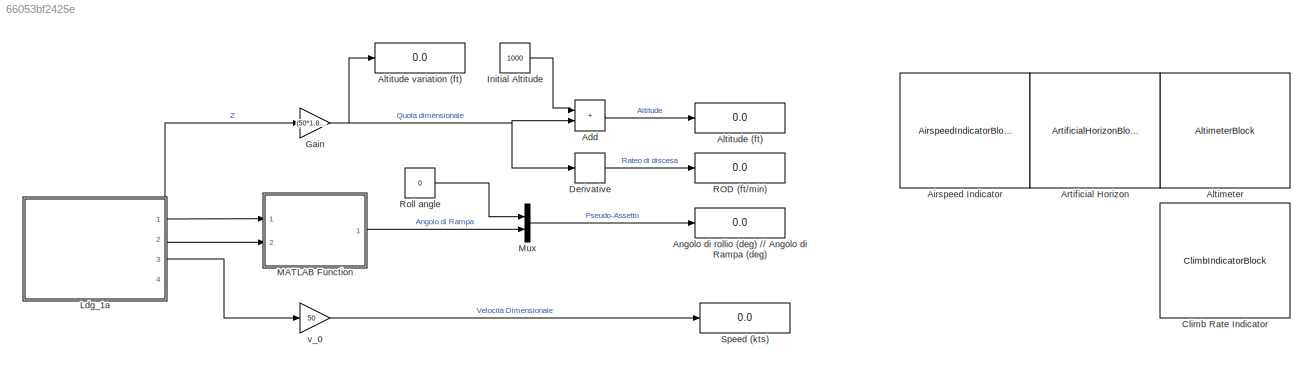
MODEL slx_66053bf2425e
KIND model
CONFIG AbsTol = auto
CONFIG EnableMultiTasking = off
CONFIG FixedStep = 0.05
CONFIG MaxStep = auto
CONFIG MinStep = auto
CONFIG RelTol = 1e-3
CONFIG SampleTimeConstraint = Unconstrained
CONFIG SolverName = ode4
CONFIG StartTime = 0.0
CONFIG StopTime = 60.0
BLOCK [Sum] Add
  IconShape = rectangular
  Ports = [2, 1]
BLOCK [AirspeedIndicatorBlock] Airspeed Indicator
  LabelPosition = Hide
  ScaleMax = 200
  ScaleMin = 0
BLOCK [AltimeterBlock] Altimeter
  LabelPosition = Hide
BLOCK [Display] Altitude (ft)
  Decimation = 1
  Ports = [1]
BLOCK [Display] Altitude variation (ft)
  Decimation = 1
  Ports = [1]
BLOCK [Display] Angolo di rollio (deg) //// Angolo di Rampa (deg)
  Decimation = 1
  Ports = [1]
BLOCK [ArtificialHorizonBlock] Artificial Horizon
  LabelPosition = Hide
BLOCK [ClimbIndicatorBlock] Climb Rate Indicator
  LabelPosition = Hide
  ScaleMax = 1000
BLOCK [Derivative] Derivative
BLOCK [Gain] Gain
  Gain = (50*1.852/3.6)^2/(9.81*0.3048)
BLOCK [Constant] Initial Altitude
  Value = 1000
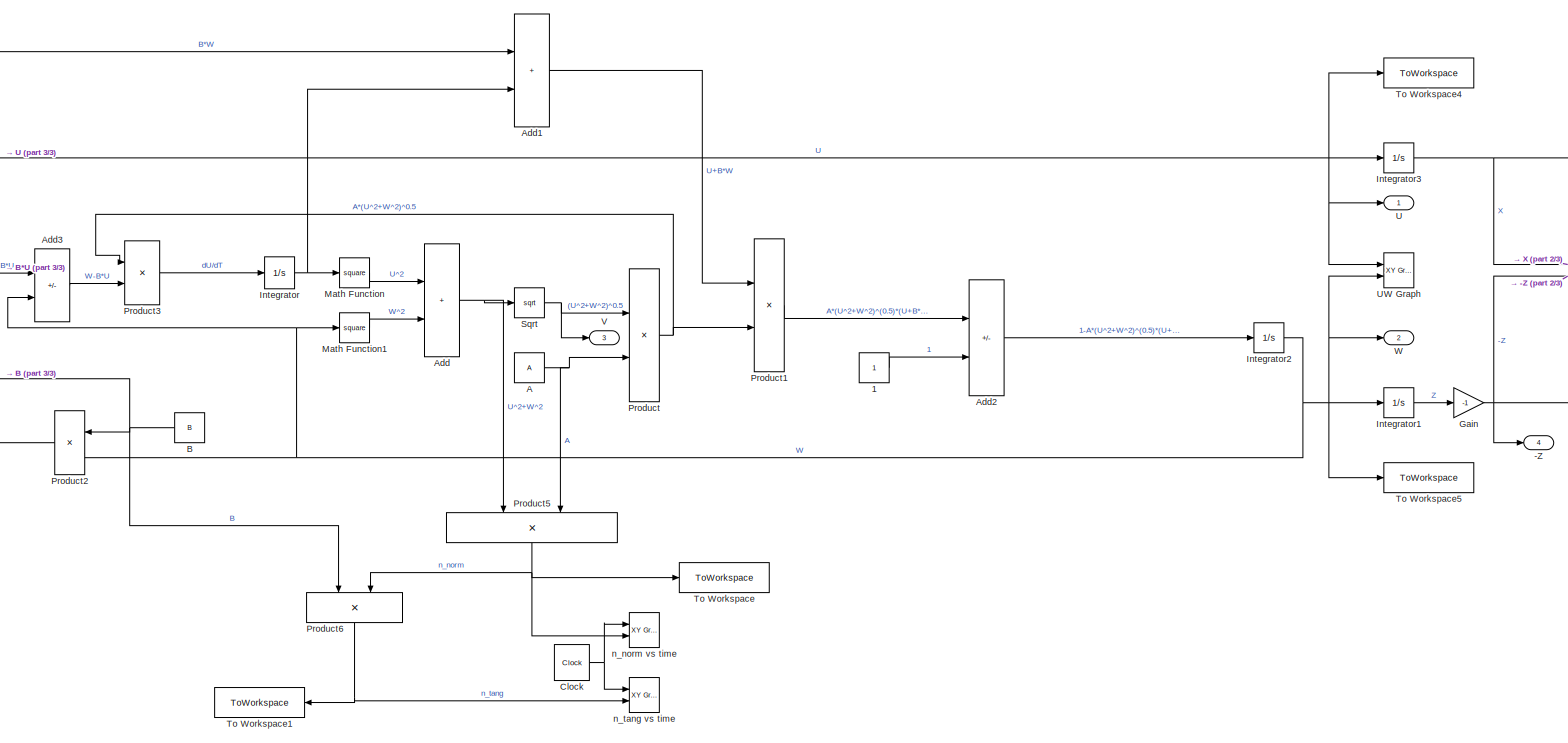
[diagram: Ldg_1a - part 1/3, most of the canvas]
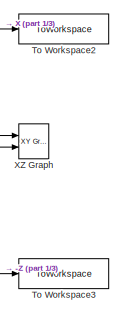
[diagram: Ldg_1a - part 2/3, middle right region]
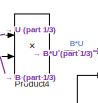
[diagram: Ldg_1a - part 3/3, middle left region]
BLOCK [SubSystem] Ldg_1a
  PortSchema = {"entries":[{"content":{"sides":[{"content":{"connectorIds":[]},"type":"ConnectorPlacement.EquallySpacedRectSide","uuid":"4eeddddf-5648-4c88-8f7b-ba758a5b9acf"},{"content":{"connectorIds":["Out1","Out2","Out3"],"side":"RIGHT"},"type":"ConnectorPlacement.EquallySpacedRectSide","uuid":"a418b520-34c7-4937-9a68-89fd52b02874"},{"content":{"connectorIds":["Out4"],"side":"TOP"},"type":"ConnectorPlacement...<+255ch>
  Ports = [0, 4]
  RequestExecContextInheritance = off
BLOCK [Outport] Ldg_1a/-Z
  Port = 4
BLOCK [Constant] Ldg_1a/1
BLOCK [Constant] Ldg_1a/A
  Value = A
BLOCK [Sum] Ldg_1a/Add
  IconShape = rectangular
  Ports = [2, 1]
BLOCK [Sum] Ldg_1a/Add1
  IconShape = rectangular
  Ports = [2, 1]
BLOCK [Sum] Ldg_1a/Add2
  IconShape = rectangular
  Inputs = -+
  Ports = [2, 1]
BLOCK [Sum] Ldg_1a/Add3
  IconShape = rectangular
  Inputs = -+
  Ports = [2, 1]
BLOCK [Constant] Ldg_1a/B
  Value = B
BLOCK [Clock] Ldg_1a/Clock
BLOCK [Gain] Ldg_1a/Gain
  Gain = -1
BLOCK [Integrator] Ldg_1a/Integrator
  InitialCondition = cos(gamma_0*pi/180)
  Ports = [1, 1]
BLOCK [Integrator] Ldg_1a/Integrator1
  Ports = [1, 1]
BLOCK [Integrator] Ldg_1a/Integrator2
  InitialCondition = -sin(gamma_0*pi/180)
  Ports = [1, 1]
BLOCK [Integrator] Ldg_1a/Integrator3
  Ports = [1, 1]
BLOCK [Math] Ldg_1a/Math Function
  Operator = square
  Ports = [1, 1]
BLOCK [Math] Ldg_1a/Math Function1
  Operator = square
  Ports = [1, 1]
BLOCK [Product] Ldg_1a/Product
  Ports = [2, 1]
BLOCK [Product] Ldg_1a/Product1
  Ports = [2, 1]
BLOCK [Product] Ldg_1a/Product2
  Ports = [2, 1]
BLOCK [Product] Ldg_1a/Product3
  Ports = [2, 1]
BLOCK [Product] Ldg_1a/Product4
  Ports = [2, 1]
BLOCK [Product] Ldg_1a/Product5
  NameLocation = left
  Ports = [2, 1]
BLOCK [Product] Ldg_1a/Product6
  NameLocation = left
  Ports = [2, 1]
BLOCK [Sqrt] Ldg_1a/Sqrt
BLOCK [ToWorkspace] Ldg_1a/To Workspace
  FixptAsFi = on
  MaxDataPoints = inf
  Ports = [1]
  SampleTime = -1
  SaveFormat = Timeseries
  VariableName = n_norm
BLOCK [ToWorkspace] Ldg_1a/To Workspace1
  FixptAsFi = on
  MaxDataPoints = inf
  Ports = [1]
  SampleTime = -1
  SaveFormat = Timeseries
  VariableName = n_tang
BLOCK [ToWorkspace] Ldg_1a/To Workspace2
  FixptAsFi = on
  MaxDataPoints = inf
  Ports = [1]
  SampleTime = -1
  SaveFormat = Timeseries
  VariableName = X
BLOCK [ToWorkspace] Ldg_1a/To Workspace3
  FixptAsFi = on
  MaxDataPoints = inf
  Ports = [1]
  SampleTime = -1
  SaveFormat = Timeseries
  VariableName = Z
BLOCK [ToWorkspace] Ldg_1a/To Workspace4
  FixptAsFi = on
  MaxDataPoints = inf
  Ports = [1]
  SampleTime = -1
  SaveFormat = Timeseries
  VariableName = U
BLOCK [ToWorkspace] Ldg_1a/To Workspace5
  FixptAsFi = on
  MaxDataPoints = inf
  Ports = [1]
  SampleTime = -1
  SaveFormat = Timeseries
  VariableName = W
BLOCK [Outport] Ldg_1a/U
BLOCK [Reference] Ldg_1a/UW Graph  REF=simulink/Sinks/XY Graph
  Ports = [2]
  SourceBlock = simulink/Sinks/XY Graph
  SourceProductBaseCode = SL
  SourceType = XY scope.
BLOCK [Outport] Ldg_1a/V
  Port = 3
BLOCK [Outport] Ldg_1a/W
  Port = 2
BLOCK [Reference] Ldg_1a/XZ Graph  REF=simulink/Sinks/XY Graph
  Ports = [2]
  SourceBlock = simulink/Sinks/XY Graph
  SourceProductBaseCode = SL
  SourceType = XY scope.
BLOCK [Reference] Ldg_1a/n_norm vs time  REF=simulink/Sinks/XY Graph
  Ports = [2]
  SourceBlock = simulink/Sinks/XY Graph
  SourceProductBaseCode = SL
  SourceType = XY scope.
BLOCK [Reference] Ldg_1a/n_tang vs time  REF=simulink/Sinks/XY Graph
  Ports = [2]
  SourceBlock = simulink/Sinks/XY Graph
  SourceProductBaseCode = SL
  SourceType = XY scope.
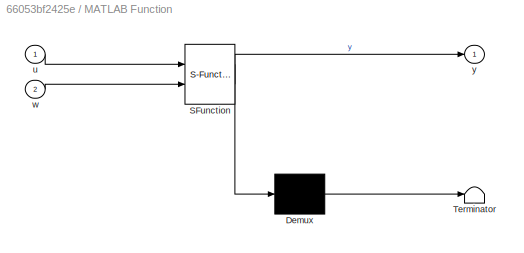
BLOCK [SubSystem] MATLAB Function
  ErrorFcn = Stateflow.Translate.translate
  PermitHierarchicalResolution = ExplicitOnly
  Ports = [2, 1]
  RequestExecContextInheritance = off
  SFBlockType = MATLAB Function
  TreatAsAtomicUnit = on
BLOCK [Demux] MATLAB Function/ Demux 
  Outputs = 1
  Ports = [1, 1]
BLOCK [S-Function] MATLAB Function/ SFunction 
  EnableBusSupport = on
  FunctionName = sf_sfun
  PortCounts = [2 2]
  Ports = [2, 2]
  SFcnIsStateOwnerBlock = off
  SFunctionDeploymentMode = off
  Tag = Stateflow S-Function 2
BLOCK [Terminator] MATLAB Function/ Terminator 
BLOCK [Inport] MATLAB Function/u
BLOCK [Inport] MATLAB Function/w
  Port = 2
BLOCK [Outport] MATLAB Function/y
BLOCK [Mux] Mux
  DisplayOption = bar
  Inputs = 2
  Ports = [2, 1]
BLOCK [Display] ROD (ft//min)
  Decimation = 1
  Ports = [1]
BLOCK [Constant] Roll angle
  Value = 0
BLOCK [Display] Speed (kts)
  Decimation = 1
  Ports = [1]
BLOCK [Gain] v_0
  Gain = 50
LINE Add:1 -> Altitude (ft):1
LINE Derivative:1 -> ROD (ft//min):1
NET Gain:1 -> Add:2, Altitude variation (ft):1, Derivative:1
LINE Initial Altitude:1 -> Add:1
LINE Ldg_1a/1:1 -> Ldg_1a/Add2:2
NET Ldg_1a/A:1 -> Ldg_1a/Product5:2, Ldg_1a/Product:2
LINE Ldg_1a/Add1:1 -> Ldg_1a/Product1:1
LINE Ldg_1a/Add2:1 -> Ldg_1a/Integrator2:1
LINE Ldg_1a/Add3:1 -> Ldg_1a/Product3:2
NET Ldg_1a/Add:1 -> Ldg_1a/Product5:1, Ldg_1a/Sqrt:1
NET Ldg_1a/B:1 -> Ldg_1a/Product2:1, Ldg_1a/Product4:2, Ldg_1a/Product6:1
NET Ldg_1a/Clock:1 -> Ldg_1a/n_norm vs time:1, Ldg_1a/n_tang vs time:1
NET Ldg_1a/Gain:1 -> Ldg_1a/-Z:1, Ldg_1a/To Workspace3:1, Ldg_1a/XZ Graph:2
LINE Ldg_1a/Integrator1:1 -> Ldg_1a/Gain:1
NET Ldg_1a/Integrator2:1 -> Ldg_1a/Add3:2, Ldg_1a/Integrator1:1, Ldg_1a/Math Function1:1, Ldg_1a/Product2:2, Ldg_1a/To Workspace5:1, Ldg_1a/UW Graph:2, Ldg_1a/W:1
NET Ldg_1a/Integrator3:1 -> Ldg_1a/To Workspace2:1, Ldg_1a/XZ Graph:1
NET Ldg_1a/Integrator:1 -> Ldg_1a/Add1:2, Ldg_1a/Integrator3:1, Ldg_1a/Math Function:1, Ldg_1a/Product4:1, Ldg_1a/To Workspace4:1, Ldg_1a/U:1, Ldg_1a/UW Graph:1
LINE Ldg_1a/Math Function1:1 -> Ldg_1a/Add:2
LINE Ldg_1a/Math Function:1 -> Ldg_1a/Add:1
LINE Ldg_1a/Product1:1 -> Ldg_1a/Add2:1
LINE Ldg_1a/Product2:1 -> Ldg_1a/Add1:1
LINE Ldg_1a/Product3:1 -> Ldg_1a/Integrator:1
LINE Ldg_1a/Product4:1 -> Ldg_1a/Add3:1
NET Ldg_1a/Product5:1 -> Ldg_1a/Product6:2, Ldg_1a/To Workspace:1, Ldg_1a/n_norm vs time:2
NET Ldg_1a/Product6:1 -> Ldg_1a/To Workspace1:1, Ldg_1a/n_tang vs time:2
NET Ldg_1a/Product:1 -> Ldg_1a/Product1:2, Ldg_1a/Product3:1
NET Ldg_1a/Sqrt:1 -> Ldg_1a/Product:1, Ldg_1a/V:1
LINE Ldg_1a:1 -> MATLAB Function:1
LINE Ldg_1a:2 -> MATLAB Function:2
LINE Ldg_1a:3 -> v_0:1
LINE Ldg_1a:4 -> Gain:1
LINE MATLAB Function:1 -> Mux:2
LINE Mux:1 -> Angolo di rollio (deg) //// Angolo di Rampa (deg):1
LINE Roll angle:1 -> Mux:1
LINE v_0:1 -> Speed (kts):1
note: NET lines group one-source signal fan-out (src -> all destinations, sorted); 1:1 wires keep LINE
CHART MATLAB Function states=1 transitions=1
  STATE_LABEL 'eML_blk_kernel()'
  STATE_LABEL 'SCRIPT:\nfunction y = angolo_rampa(u,w)\n\ny = atan(-w/u)*180/pi;\n'
CHART  states=0 transitions=0
